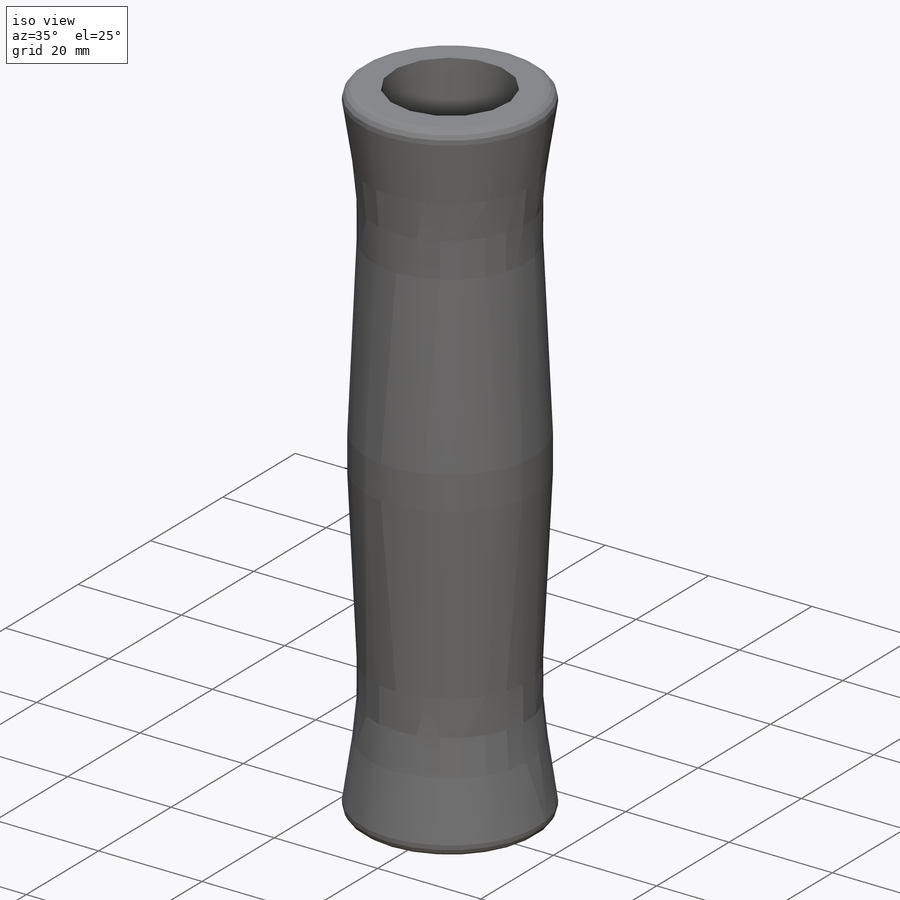
[diagram: iso view]
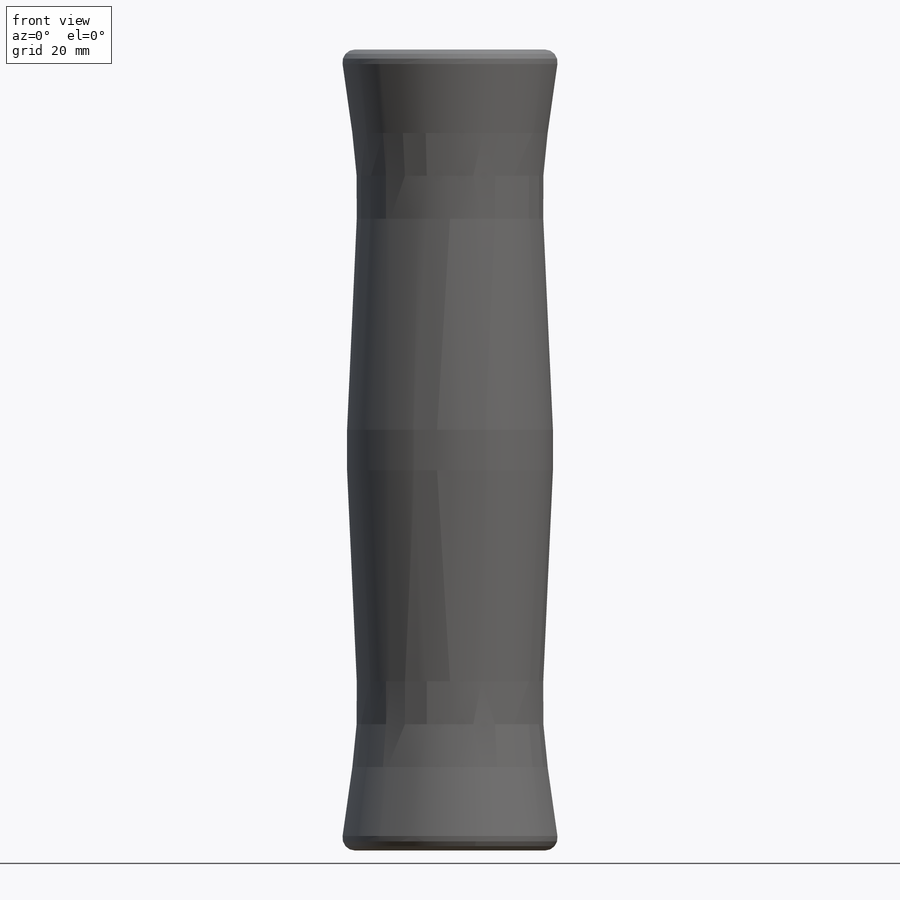
[diagram: front view]
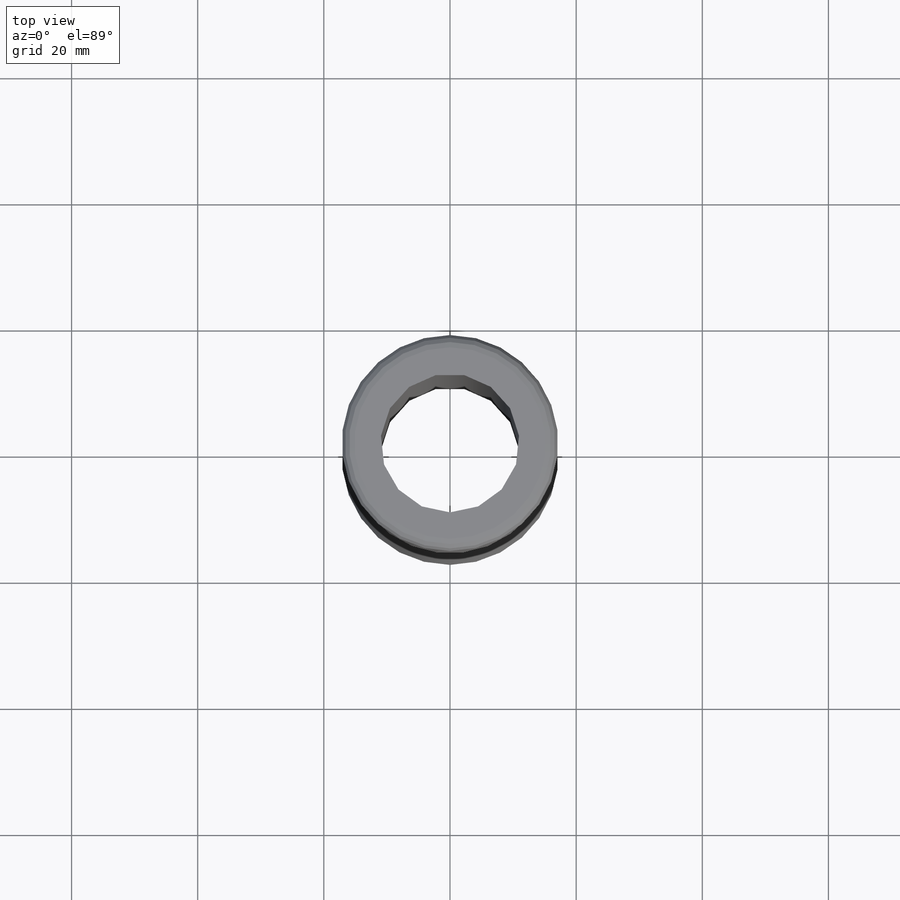
[diagram: top view]
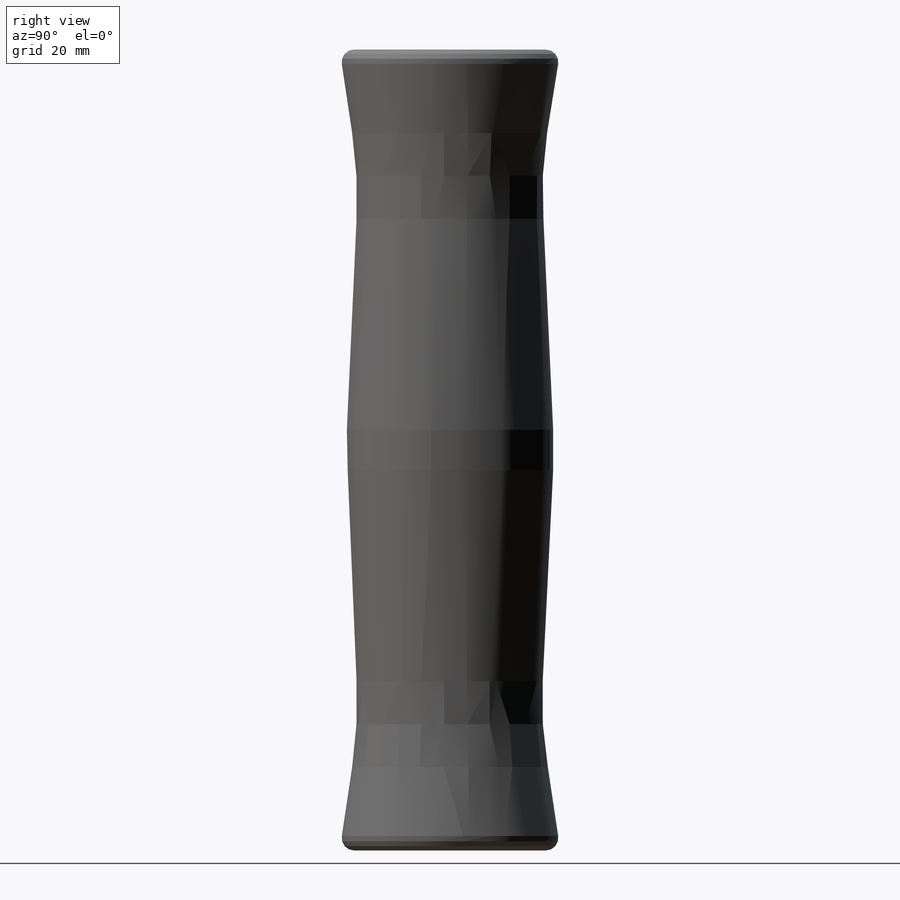
[diagram: right view]
SOLIDWORKS PART (.sldprt)
format: sldprt  version: not decoded by parser v0  size: 232,448 bytes
history: native  units: mm
features: plane x3, sketch x2, fillet x2, material x1, revolve x1, cut_extrude x1 (+8 scaffold rows collapsed)
feature tree (18):
  scaffold x8  (default folders/planes/origin — collapsed)
  material  "Сосна"
  plane  "Спереди"
  plane  "Сверху"
  plane  "Справа"
  sketch  "Эскиз1"  dims[c1.D1=17.5mm c1.D2=63.5mm c1.D3=29.0mm c1.D4=33.0mm c1.D5=20.0mm c2.D3=29.0mm c2.D4=33.0mm c2.D6=127.0mm]
  revolve  "Повернуть1"  Angle=360deg
  fillet  "Скругление1"  Radius=2mm
  fillet  "Скругление2"  Radius=70mm
  sketch  "Эскиз2"  dims[D1=22.0mm]
  cut_extrude  "Вырез-Вытянуть1"  [1 undecoded]
decode coverage: 5 of 6 modeling features carry decoded parameters
note: 1 parameter value undecoded
note: suppression state not decoded; provenance and decode notes live in map.json
